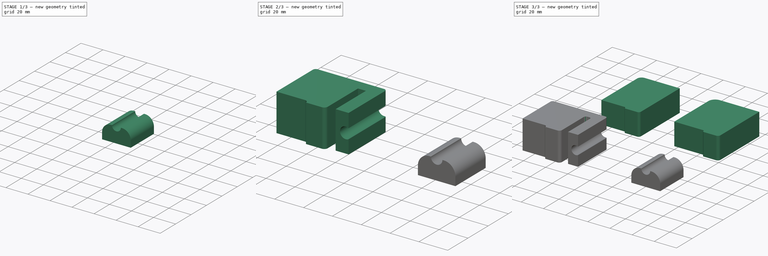
[diagram: build sequence overview — one tinted view per stage of 3, left to right]
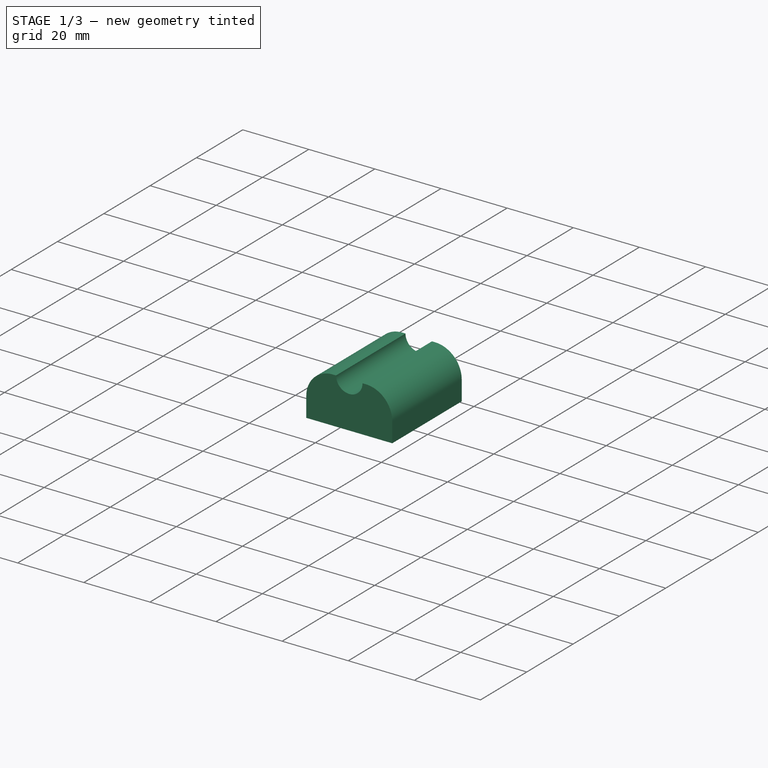
[diagram: stage 1 of 3 — iso view after this stage's code; geometry added in this stage tinted green]
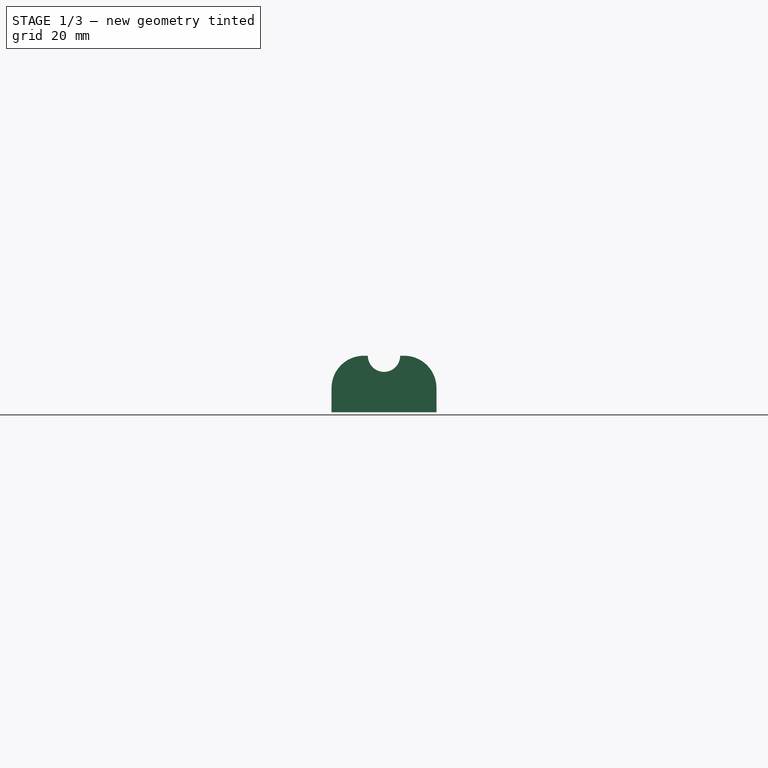
[diagram: stage 1 of 3 — front view after this stage's code; geometry added in this stage tinted green]
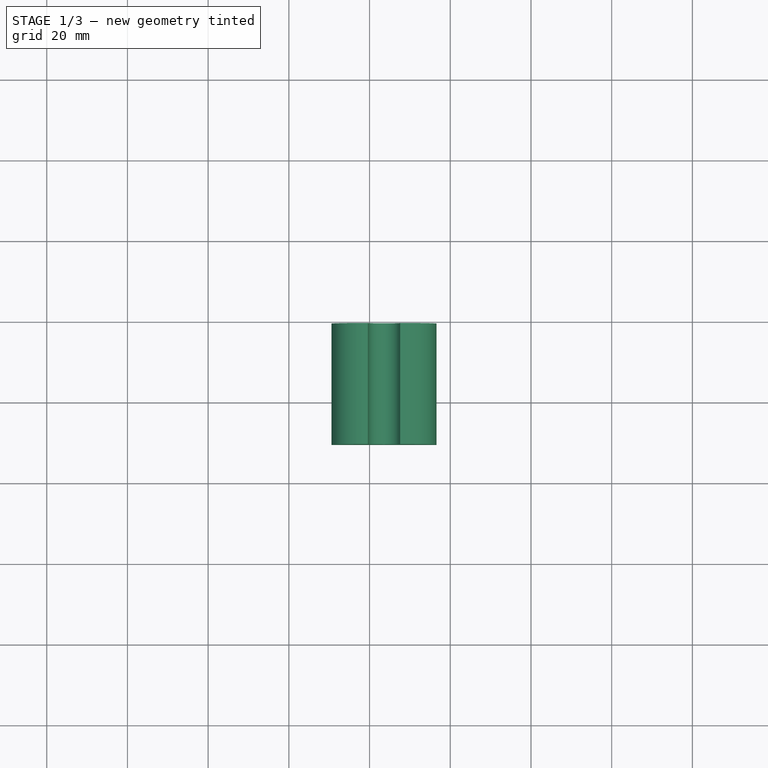
[diagram: stage 1 of 3 — top view after this stage's code; geometry added in this stage tinted green]
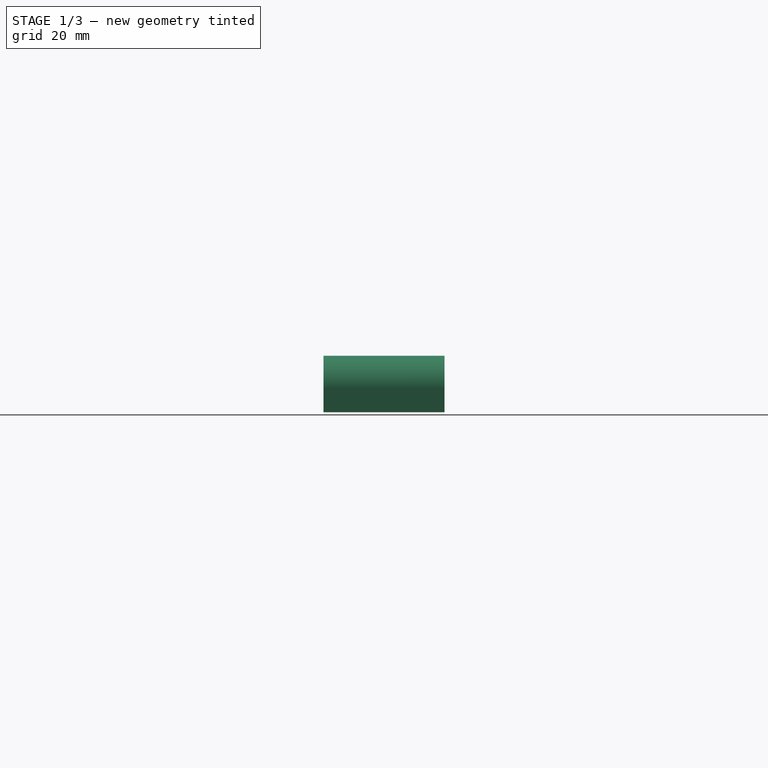
[diagram: stage 1 of 3 — right view after this stage's code; geometry added in this stage tinted green]
FCSTD DOCUMENT  (FreeCAD 1.0R38641 +468 (Git))
Label: block
License: All rights reserved
LicenseURL: http://en.wikipedia.org/wiki/All_rights_reserved
objects: Sketcher::SketchObject×6, PartDesign::Pad×4, PartDesign::Body×4, PartDesign::Pocket×2, PartDesign::Fillet×2
note: 40 computed .brp shape members not serialized (recipe doc carries the construction recipe); baked Part::Feature solids carry a one-line shape summary decoded from their .brp

FEATURE [PartDesign::Body] Body002
  AllowCompound = false
  Group = -> [Sketch002,Pad002,Sketch003,Pocket,Fillet]
  Origin = -> Origin002
  Tip = -> Fillet
FEATURE [Sketcher::SketchObject] Sketch004
  ArcFitTolerance = 1e-06
  AttachmentSupport = -> [XY_Plane003]
  FullyConstrained = false
  MakeInternals = false
  MapMode = 5
  sketch-geometry (4):
    g0: LineSegment StartX=30.5781 StartY=-20.4179 StartZ=0 EndX=30.5781 EndY=-50.4179 EndZ=0
    g1: LineSegment StartX=30.5781 StartY=-50.4179 StartZ=0 EndX=56.5781 EndY=-50.4179 EndZ=0
    g2: LineSegment StartX=56.5781 StartY=-50.4179 StartZ=0 EndX=56.5781 EndY=-20.4179 EndZ=0
    g3: LineSegment StartX=56.5781 StartY=-20.4179 StartZ=0 EndX=30.5781 EndY=-20.4179 EndZ=0
  constraints (10):
    c: Coincident(g0,g1)
    c: Coincident(g1,g2)
    c: Coincident(g2,g3)
    c: Coincident(g3,g0)
    c: Vertical(g0)
    c: Vertical(g2)
    c: Horizontal(g1)
    c: Horizontal(g3)
    c: DistanceX(g3,g3) = 26
    c: DistanceY(g2,g2) = 30
FEATURE [PartDesign::Pad] Pad003
  Direction = (0,0,1)
  Length = 14
  Length2 = 10
  Profile = -> Sketch004
  ReferenceAxis = -> Sketch004 [N_Axis]
  Suppressed = false
  Type = 0
FEATURE [Sketcher::SketchObject] Sketch005
  ArcFitTolerance = 1e-06
  AttachmentSupport = -> [Pad003]
  ExternalGeometry = -> [Pad003]
  FullyConstrained = true
  MakeInternals = false
  MapMode = 5
  Placement = pos=(0,-50.4179,0) rot=(1,0,0;1.5708rad)
  sketch-geometry (1):
    g0: Circle CenterX=43.5781 CenterY=14 CenterZ=0 NormalX=0 NormalY=0 NormalZ=1 AngleXU=0 Radius=4
  constraints (2):
    c: Symmetric(g-3,g-3,g0)
    c: Radius(g0) = 4
FEATURE [PartDesign::Pocket] Pocket001
  BaseFeature = -> Pad003
  Direction = (0,1,-2e-16)
  Length = 30
  Length2 = 5
  Profile = -> Sketch005
  ReferenceAxis = -> Sketch005 [N_Axis]
  Suppressed = false
  Type = 0
FEATURE [PartDesign::Fillet] Fillet001
  Base = -> Pocket001 [Edge18,Edge4]
  BaseFeature = -> Pocket001
  Radius = 8
  SupportTransform = false
  Suppressed = false
  UseAllEdges = false
FEATURE [PartDesign::Body] Body003
  AllowCompound = false
  Group = -> [Sketch004,Pad003,Sketch005,Pocket001,Fillet001]
  Origin = -> Origin003
  Tip = -> Fillet001
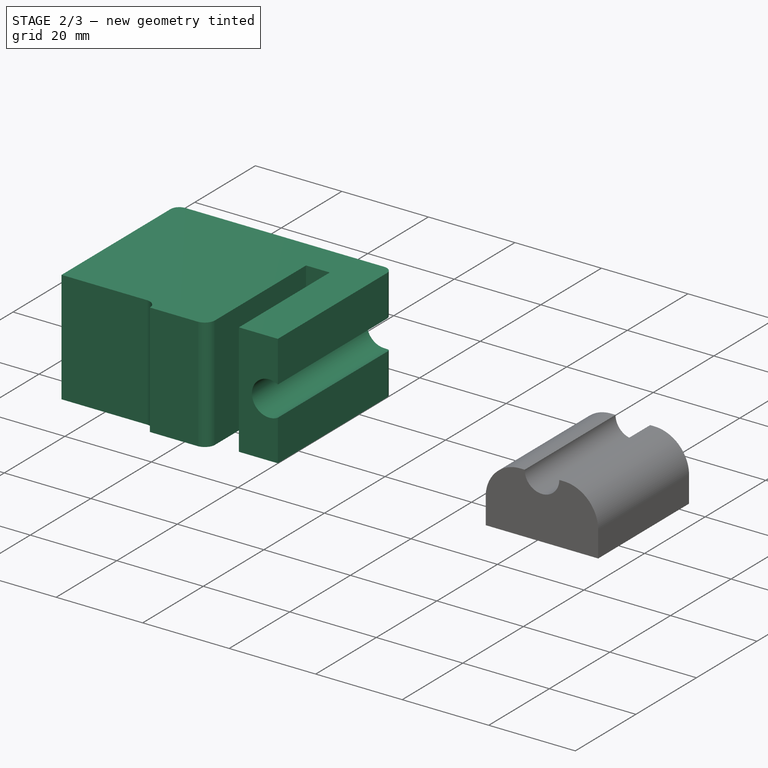
[diagram: stage 2 of 3 — iso view after this stage's code; geometry added in this stage tinted green]
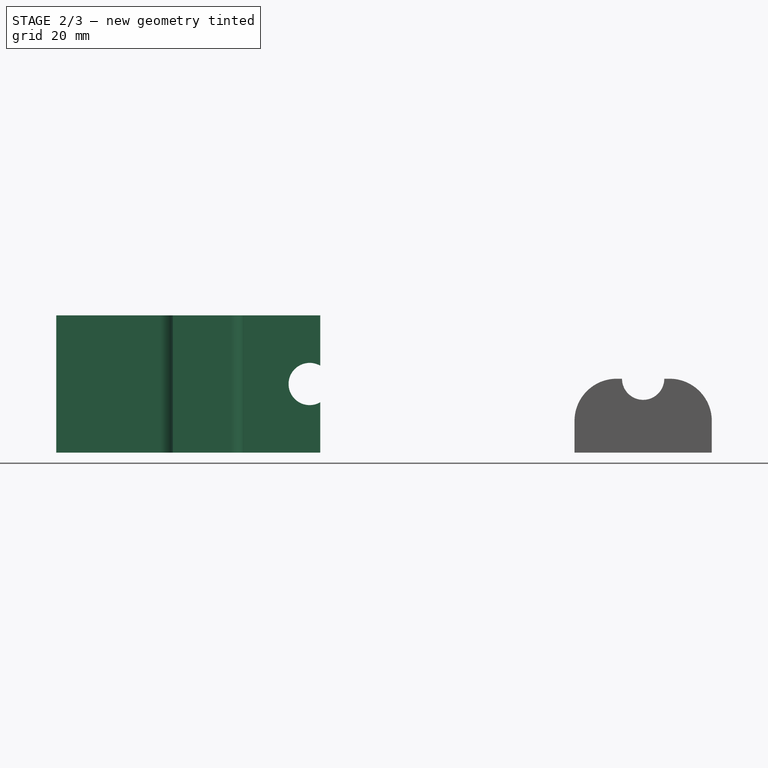
[diagram: stage 2 of 3 — front view after this stage's code; geometry added in this stage tinted green]
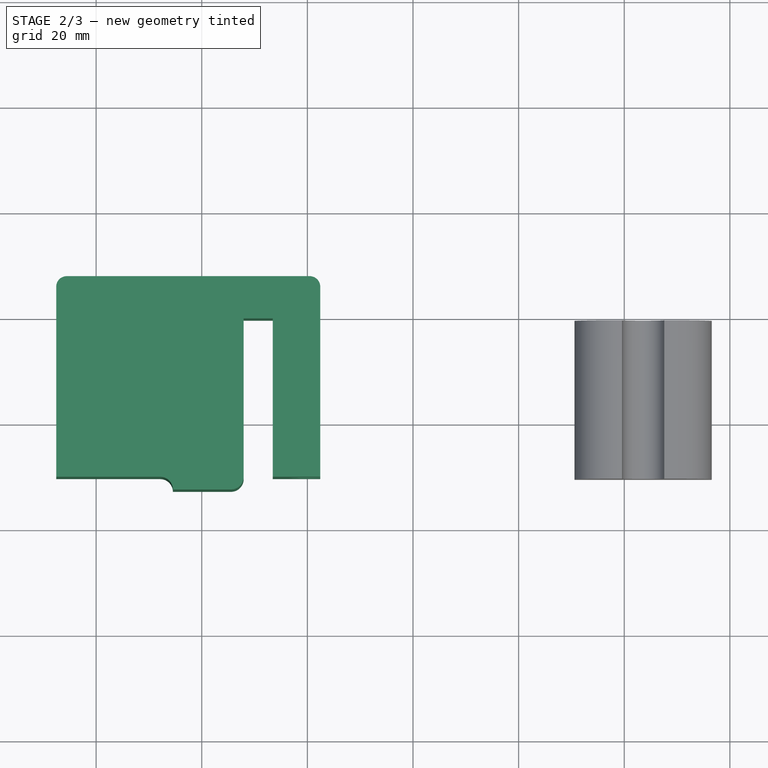
[diagram: stage 2 of 3 — top view after this stage's code; geometry added in this stage tinted green]
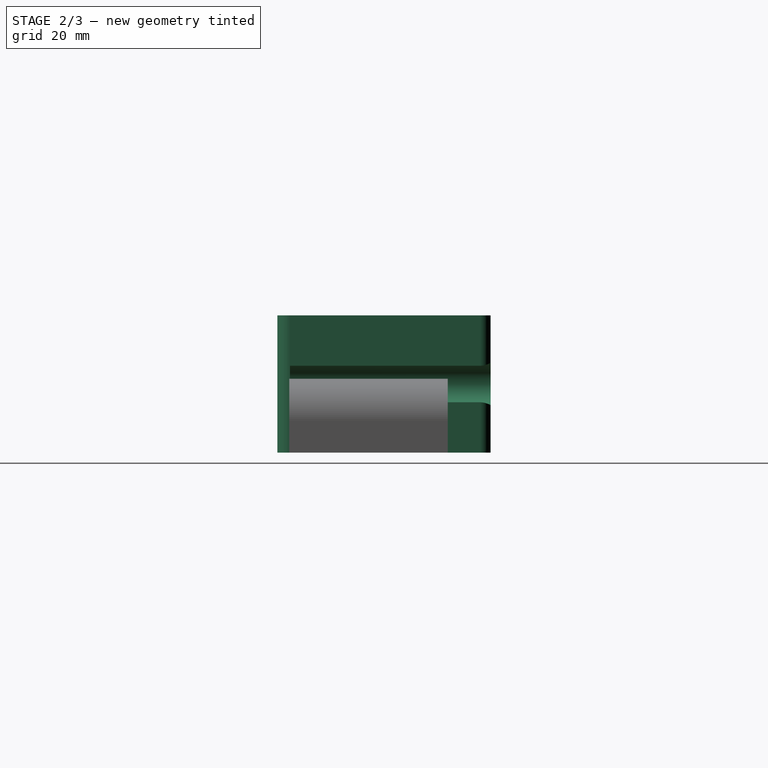
[diagram: stage 2 of 3 — right view after this stage's code; geometry added in this stage tinted green]
FEATURE [PartDesign::Body] Body001
  AllowCompound = false
  Group = -> [Sketch001,Pad001]
  Origin = -> Origin001
  Tip = -> Pad001
FEATURE [Sketcher::SketchObject] Sketch002
  ArcFitTolerance = 1e-06
  AttachmentSupport = -> [XY_Plane002]
  FullyConstrained = false
  MakeInternals = false
  MapMode = 5
  sketch-geometry (13):
    g0: LineSegment StartX=-65.5679 StartY=-12.2793 StartZ=0 EndX=-19.5679 EndY=-12.2793 EndZ=0
    g1: LineSegment StartX=-67.5679 StartY=-14.2793 StartZ=0 EndX=-67.5679 EndY=-50.2793 EndZ=0
    g2: ArcOfCircle CenterX=-65.5679 CenterY=-14.2793 CenterZ=0 NormalX=0 NormalY=0 NormalZ=1 AngleXU=0 Radius=2 StartAngle=1.5708 EndAngle=3.14159
    g3: ArcOfCircle CenterX=-19.5679 CenterY=-14.2793 CenterZ=0 NormalX=0 NormalY=0 NormalZ=1 AngleXU=0 Radius=2 StartAngle=0 EndAngle=1.5708
    g4: LineSegment StartX=-17.5679 StartY=-14.2793 StartZ=0 EndX=-17.5679 EndY=-50.2793 EndZ=0
    g5: LineSegment StartX=-67.5679 StartY=-50.2793 StartZ=0 EndX=-47.8679 EndY=-50.2793 EndZ=0
    g6: LineSegment StartX=-45.4679 StartY=-52.6793 StartZ=0 EndX=-34.4679 EndY=-52.6793 EndZ=0
    g7: ArcOfCircle CenterX=-34.4679 CenterY=-50.2793 CenterZ=0 NormalX=0 NormalY=0 NormalZ=1 AngleXU=0 Radius=2.4 StartAngle=4.71239 EndAngle=6.28319
    g8: ArcOfCircle CenterX=-47.8679 CenterY=-52.6793 CenterZ=0 NormalX=0 NormalY=0 NormalZ=1 AngleXU=0 Radius=2.4 StartAngle=-9e-16 EndAngle=1.5708
    g9: LineSegment StartX=-26.5679 StartY=-50.2793 StartZ=0 EndX=-17.5679 EndY=-50.2793 EndZ=0
    g10: LineSegment StartX=-32.0679 StartY=-50.2793 StartZ=0 EndX=-32.0679 EndY=-20.2793 EndZ=0
    g11: LineSegment StartX=-32.0679 StartY=-20.2793 StartZ=0 EndX=-26.5679 EndY=-20.2793 EndZ=0
    g12: LineSegment StartX=-26.5679 StartY=-20.2793 StartZ=0 EndX=-26.5679 EndY=-50.2793 EndZ=0
  constraints (40):
    c: Distance(g0) = 46
    c: Horizontal(g0)
    c: Distance(g1) = 36
    c: Vertical(g1)
    c: Coincident(g2,g0)
    c: Coincident(g2,g1)
    c: Vertical(g2,g0)
    c: Horizontal(g2,g1)
    c: Radius(g2) = 2
    c: Coincident(g3,g0)
    c: Distance(g4) = 36
    c: Vertical(g4)
    c: Coincident(g4,g3)
    c: Vertical(g0,g3)
    c: Horizontal(g3,g3)
    c: Radius(g3) = 2
    c: Horizontal(g5)
    c: Coincident(g5,g1)
    c: Horizontal(g6)
    c: Coincident(g7,g6)
    c: Radius(g7) = 2.4
    c: Horizontal(g7,g4)
    c: Vertical(g7,g6)
    c: Coincident(g8,g5)
    c: Coincident(g8,g6)
    c: Radius(g8) = 2.4
    c: Vertical(g5,g8)
    c: DistanceX(g6,g6) = 11
    c: Coincident(g9,g4)
    c: Horizontal(g9)
    c: DistanceX(g9,g9) = 9
    c: DistanceX(g7,g9) = 5.5
    c: Tangent(g7,g10) = -1.5708
    c: Coincident(g10,g11)
    c: Horizontal(g11)
    c: Coincident(g11,g12)
    c: Coincident(g12,g9)
    c: Vertical(g12)
    c: Vertical(g10)
    c: DistanceY(g12,g12) = 30
FEATURE [PartDesign::Pad] Pad002
  Direction = (0,0,1)
  Length = 26
  Length2 = 10
  Profile = -> Sketch002
  ReferenceAxis = -> Sketch002 [N_Axis]
  Suppressed = false
  Type = 0
FEATURE [Sketcher::SketchObject] Sketch003
  ArcFitTolerance = 1e-06
  AttachmentSupport = -> [Pad002]
  ExternalGeometry = -> [Pad002]
  FullyConstrained = true
  MakeInternals = false
  MapMode = 5
  Placement = pos=(0,-50.2793,0) rot=(1,0,0;1.5708rad)
  sketch-geometry (1):
    g0: Circle CenterX=-19.5679 CenterY=13 CenterZ=0 NormalX=0 NormalY=0 NormalZ=1 AngleXU=0 Radius=4
  constraints (3):
    c: Radius(g0) = 4
    c: DistanceX(g0,g-3) = 2
    c: DistanceY(g-3,g0) = 13
FEATURE [PartDesign::Pocket] Pocket
  BaseFeature = -> Pad002
  Direction = (0,1,-2e-16)
  Length = 38
  Length2 = 5
  Profile = -> Sketch003
  ReferenceAxis = -> Sketch003 [N_Axis]
  Suppressed = false
  Type = 0
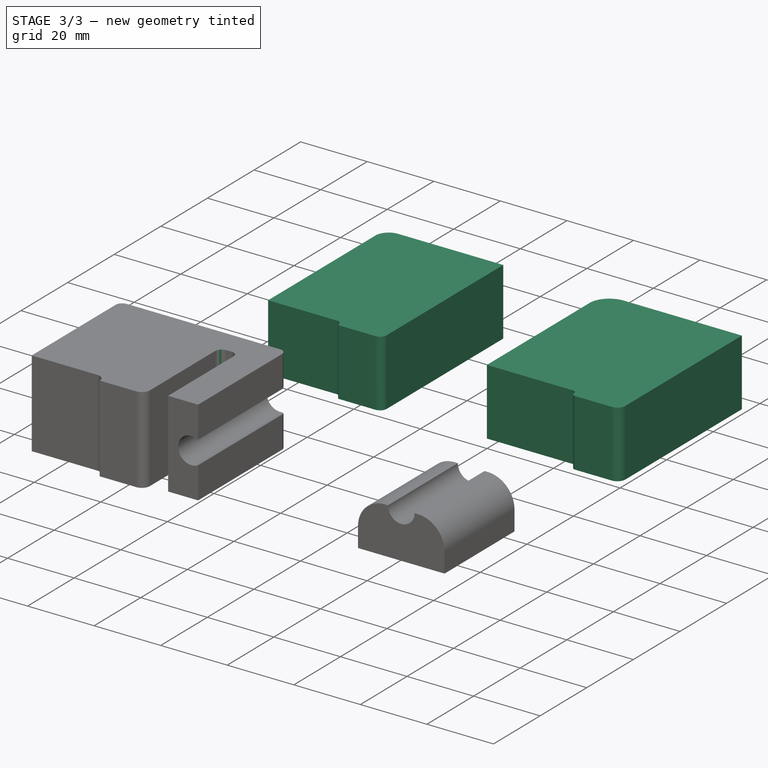
[diagram: stage 3 of 3 — iso view after this stage's code; geometry added in this stage tinted green]
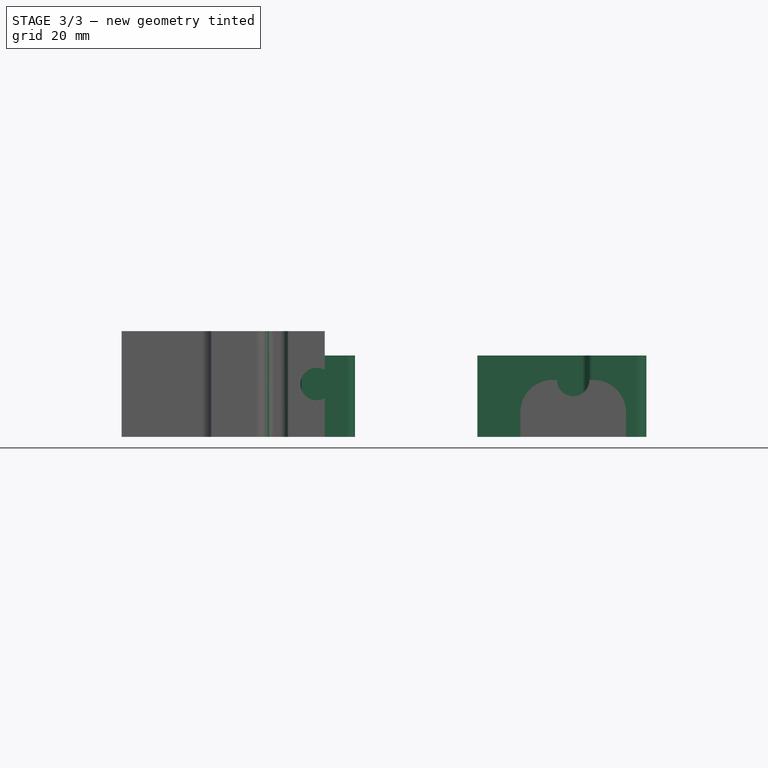
[diagram: stage 3 of 3 — front view after this stage's code; geometry added in this stage tinted green]
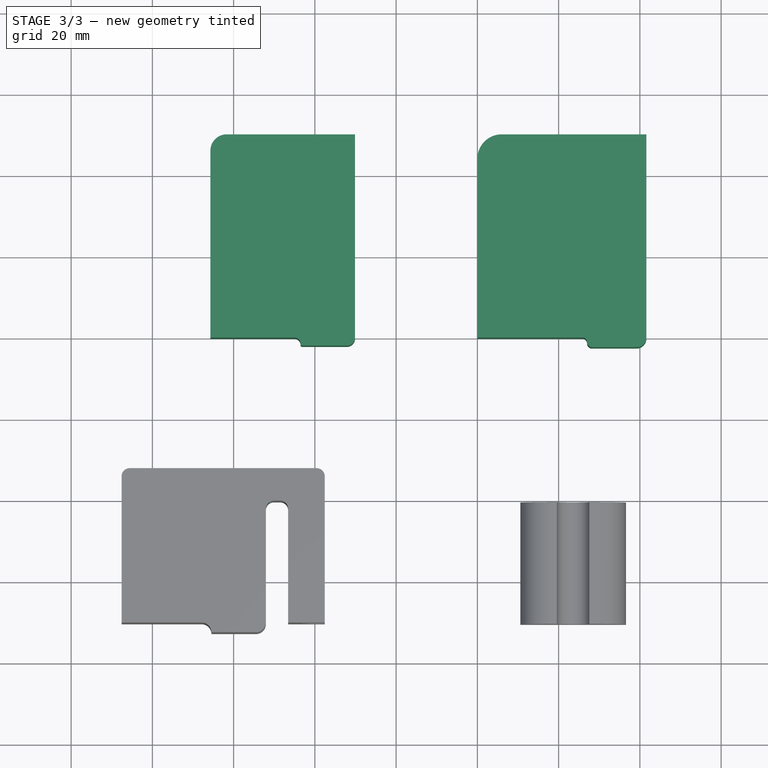
[diagram: stage 3 of 3 — top view after this stage's code; geometry added in this stage tinted green]
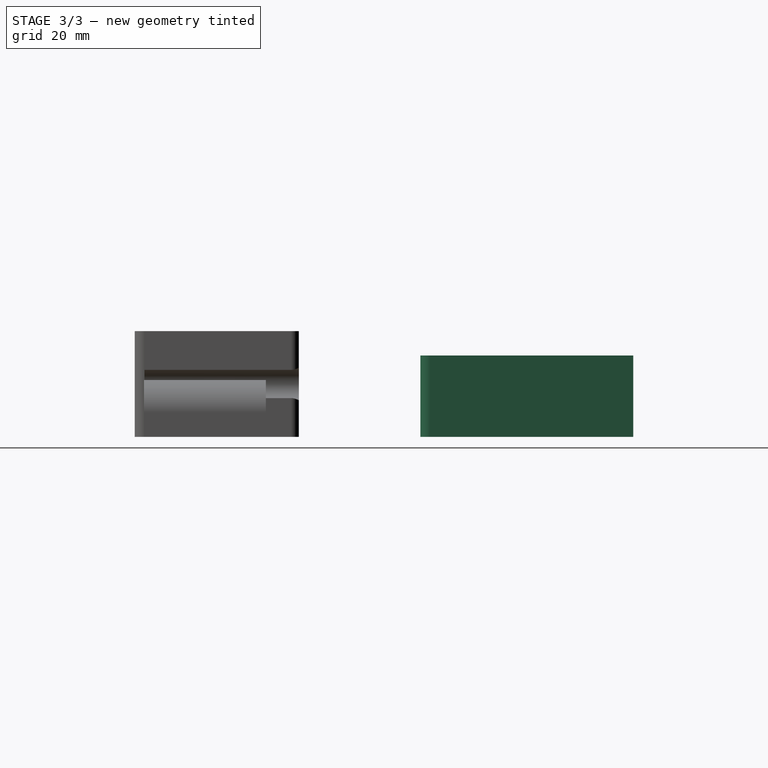
[diagram: stage 3 of 3 — right view after this stage's code; geometry added in this stage tinted green]
FEATURE [Sketcher::SketchObject] Sketch
  ArcFitTolerance = 0
  AttachmentSupport = -> [XY_Plane]
  FullyConstrained = false
  MakeInternals = false
  MapMode = 5
  sketch-geometry (9):
    g0: LineSegment StartX=26 StartY=70 StartZ=0 EndX=61.6 EndY=70 EndZ=0
    g1: LineSegment StartX=61.6 StartY=70 StartZ=0 EndX=61.6 EndY=20 EndZ=0
    g2: LineSegment StartX=20 StartY=20 StartZ=0 EndX=20 EndY=64 EndZ=0
    g3: ArcOfCircle CenterX=26 CenterY=64 CenterZ=0 NormalX=0 NormalY=0 NormalZ=1 AngleXU=0 Radius=6 StartAngle=1.5708 EndAngle=3.14159
    g4: LineSegment StartX=20 StartY=20 StartZ=0 EndX=45.8 EndY=20 EndZ=0
    g5: LineSegment StartX=48.2 StartY=17.6 StartZ=0 EndX=59.2 EndY=17.6 EndZ=0
    g6: ArcOfCircle CenterX=59.2 CenterY=20 CenterZ=0 NormalX=0 NormalY=0 NormalZ=1 AngleXU=0 Radius=2.4 StartAngle=4.71239 EndAngle=6.28319
    g7: ArcOfCircle CenterX=45.8 CenterY=18.8 CenterZ=0 NormalX=0 NormalY=0 NormalZ=1 AngleXU=0 Radius=1.2 StartAngle=7e-16 EndAngle=1.5708
    g8: ArcOfCircle CenterX=48.2 CenterY=18.8 CenterZ=0 NormalX=0 NormalY=0 NormalZ=1 AngleXU=0 Radius=1.2 StartAngle=3.14159 EndAngle=4.71239
  constraints (29):
    c: Horizontal(g0)
    c: Coincident(g0,g1)
    c: Vertical(g1)
    c: Vertical(g2)
    c: Coincident(g2,g3)
    c: Horizontal(g4)
    c: Horizontal(g5)
    c: Coincident(g6,g1)
    c: Coincident(g6,g5)
    c: DistanceY(g5,g6) = 2.4
    c: DistanceX(g6,g1) = 2.4
    c: Coincident(g2,g4)
    c: DistanceX(g5,g5) = 11
    c: DistanceX(g2,g0) = 41.6
    c: DistanceY(g1,g1) = 50
    c: DistanceX(g3,g0) = 0
    c: Coincident(g3,g0)
    c: DistanceY(g3,g2) = 0
    c: DistanceY(g6,g1) = 0
    c: DistanceY(g3,g0) = 6
    c: Radius(g7) = 1.2
    c: Radius(g8) = 1.2
    c: DistanceX(g4,g7) = 0
    c: DistanceX(g8,g5) = 0
    c: DistanceY(g7,g7) = 1.2
    c: DistanceY(g5,g8) = 1.2
    c: Coincident(g4,g7)
    c: Coincident(g8,g7)
    c: Coincident(g5,g8)
FEATURE [PartDesign::Pad] Pad
  Direction = (0,0,1)
  Length = 20
  Length2 = 10
  Profile = -> Sketch
  ReferenceAxis = -> Sketch [N_Axis]
  Suppressed = false
  Type = 0
FEATURE [PartDesign::Body] Body
  AllowCompound = false
  Group = -> [Sketch,Pad]
  Origin = -> Origin
  Tip = -> Pad
FEATURE [Sketcher::SketchObject] Sketch001
  ArcFitTolerance = 0
  AttachmentSupport = -> [XY_Plane001]
  FullyConstrained = false
  MakeInternals = false
  MapMode = 5
  sketch-geometry (9):
    g0: LineSegment StartX=-41.7076 StartY=70 StartZ=0 EndX=-10.1076 EndY=70 EndZ=0
    g1: LineSegment StartX=-10.1076 StartY=70 StartZ=0 EndX=-10.1076 EndY=20 EndZ=0
    g2: LineSegment StartX=-45.7076 StartY=19.9758 StartZ=0 EndX=-45.7076 EndY=66 EndZ=0
    g3: ArcOfCircle CenterX=-41.7076 CenterY=66 CenterZ=0 NormalX=0 NormalY=0 NormalZ=1 AngleXU=0 Radius=4 StartAngle=1.5708 EndAngle=3.14159
    g4: LineSegment StartX=-45.7076 StartY=19.9758 StartZ=0 EndX=-25.1069 EndY=19.9758 EndZ=0
    g5: LineSegment StartX=-23.1076 StartY=18 StartZ=0 EndX=-12.1076 EndY=18 EndZ=0
    g6: ArcOfCircle CenterX=-12.1076 CenterY=20 CenterZ=0 NormalX=0 NormalY=0 NormalZ=1 AngleXU=0 Radius=2 StartAngle=4.7124 EndAngle=6.28319
    g7: ArcOfCircle CenterX=-25.1069 CenterY=18.3758 CenterZ=0 NormalX=0 NormalY=0 NormalZ=1 AngleXU=0 Radius=1.6 StartAngle=6.28319 EndAngle=7.85398
    g8: ArcOfCircle CenterX=-23.1076 CenterY=18.4 CenterZ=0 NormalX=0 NormalY=0 NormalZ=1 AngleXU=0 Radius=0.4 StartAngle=3.20209 EndAngle=4.71239
  constraints (28):
    c: Horizontal(g0)
    c: Coincident(g0,g1)
    c: Vertical(g1)
    c: Vertical(g2)
    c: Coincident(g2,g3)
    c: Horizontal(g4)
    c: Horizontal(g5)
    c: Coincident(g6,g1)
    c: Coincident(g6,g5)
    c: DistanceY(g5,g6) = 2
    c: DistanceX(g6,g1) = 2
    c: Coincident(g2,g4)
    c: DistanceX(g5,g5) = 11
    c: DistanceX(g2,g0) = 35.6
    c: DistanceY(g1,g1) = 50
    c: DistanceX(g3,g0) = 0
    c: Coincident(g3,g0)
    c: DistanceY(g3,g2) = 0
    c: DistanceY(g6,g1) = 0
    c: DistanceY(g3,g0) = 4
    c: Coincident(g7,g4)
    c: DistanceX(g4,g7) = 0
    c: Coincident(g7,g8)
    c: Coincident(g8,g5)
    c: DistanceX(g5,g8) = 0
    c: DistanceY(g7,g4) = 1.6
    c: DistanceY(g5,g8) = 0.4
    c: DistanceX(g7,g7) = 1.6
FEATURE [PartDesign::Pad] Pad001
  Direction = (0,0,1)
  Length = 20
  Length2 = 10
  Profile = -> Sketch001
  ReferenceAxis = -> Sketch001 [N_Axis]
  Suppressed = false
  Type = 0
FEATURE [PartDesign::Fillet] Fillet
  Base = -> Pocket [Edge45,Edge44]
  BaseFeature = -> Pocket
  Radius = 2
  SupportTransform = false
  Suppressed = false
  UseAllEdges = false
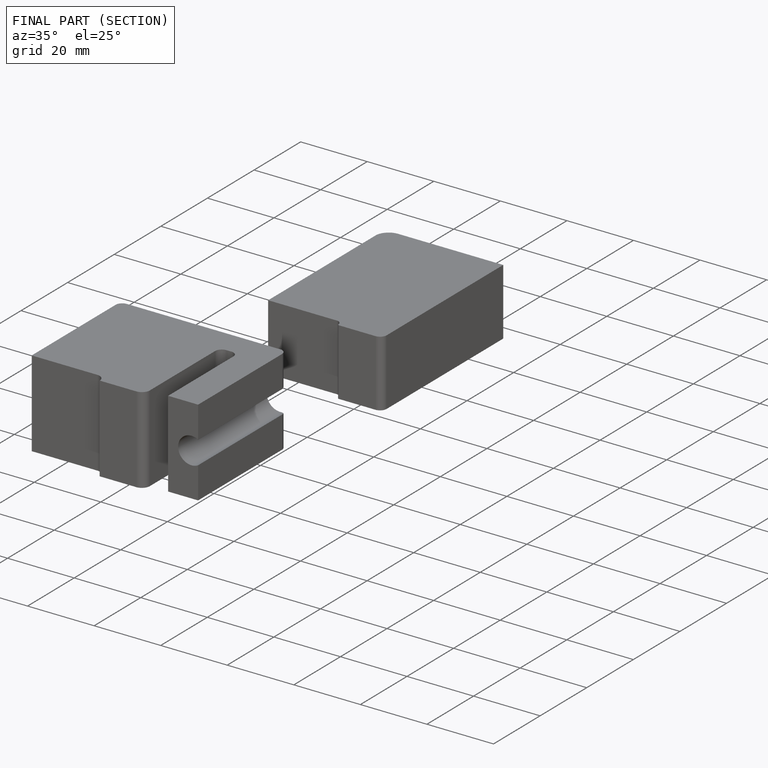
[diagram: finished part — half-section view (interior)]
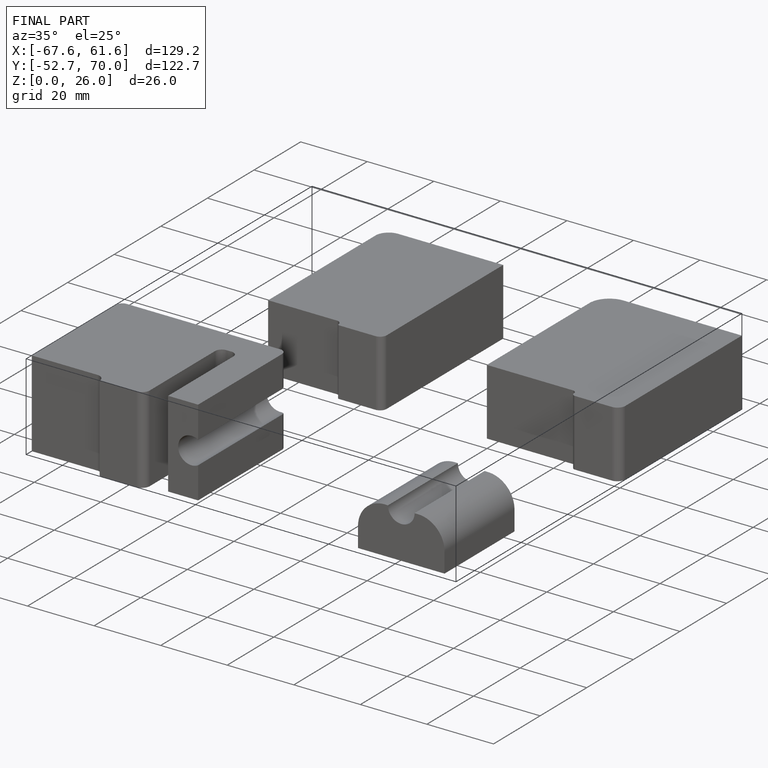
[diagram: finished part — iso view with bounding-box wireframe]
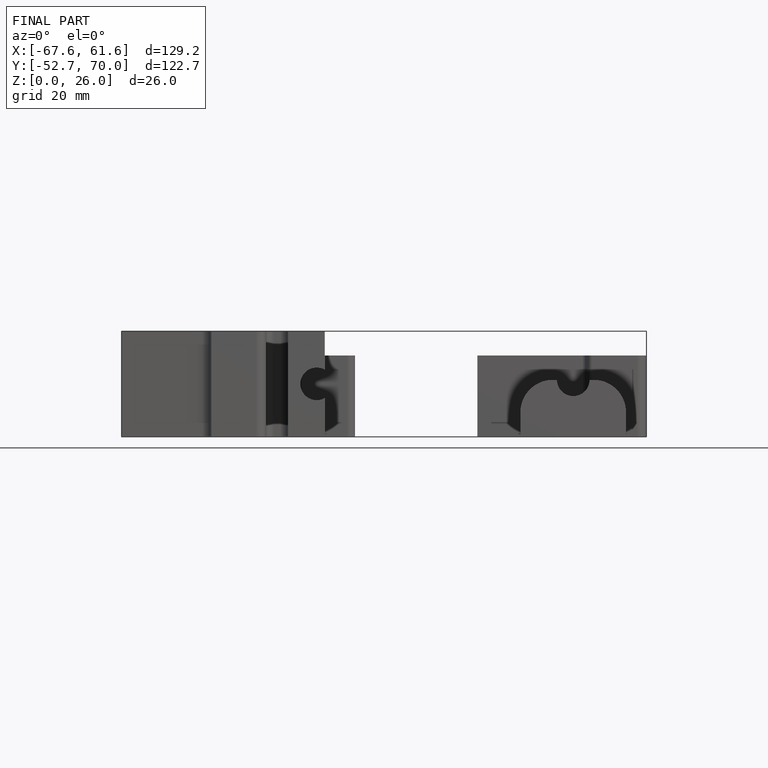
[diagram: finished part — front view with bounding-box wireframe]
